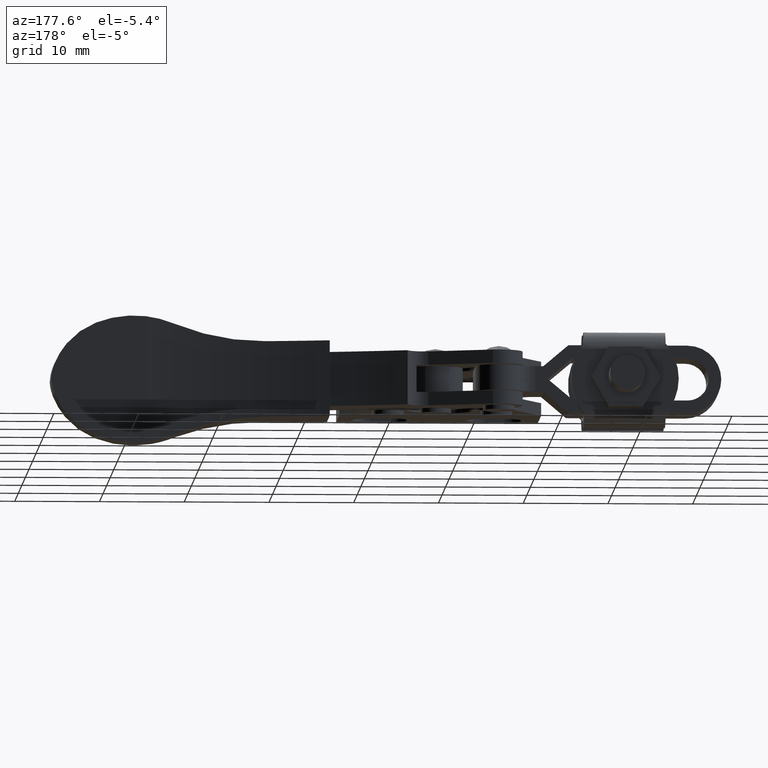
[diagram: clean part render]
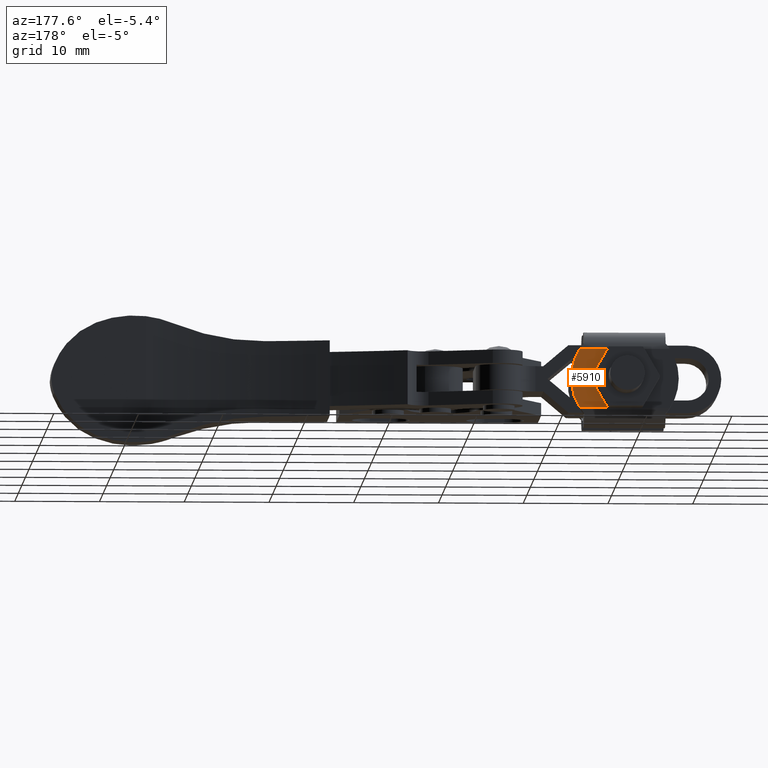
[diagram: same view with one face highlighted and labeled with its STEP entity id]
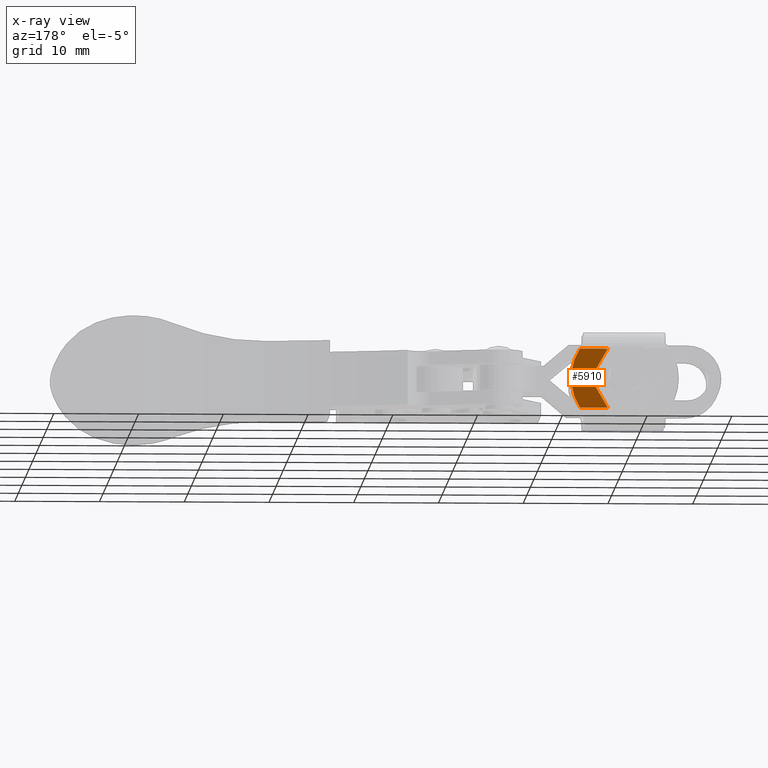
[diagram: x-ray of the same camera — body ghosted, the highlighted face saturated]
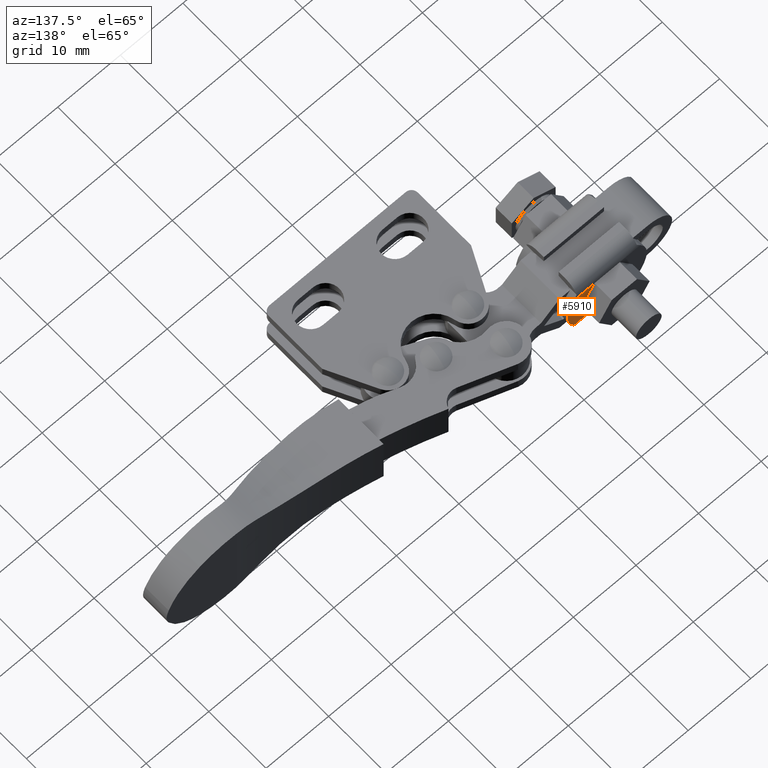
[diagram: same view with one face highlighted and labeled with its STEP entity id]
A machine part, auxiliary view. The second image highlights one B-rep face of the part: STEP entity #5910.
The next image is the same camera in x-ray: the body ghosted, the highlighted face saturated — about 0% of this face is hidden behind the body in this view.
A second angle (auxiliary view) of the same face is appended — the face is thin or edge-on in the first view.
In plain terms, the highlighted planar face has unit normal (0, 1, 0).
Its self-contained STEP definition (entity closure, byte-faithful):
#143 = VECTOR ( 'NONE', #828, 1000.000000000000000 ) ;
#188 = DIRECTION ( 'NONE',  ( -1.000000000000000000, 0.0000000000000000000, 8.316539286046452500E-017 ) ) ;
#207 = DIRECTION ( 'NONE',  ( 0.4999999999999997200, 2.383741803116716000E-016, -0.8660254037844388200 ) ) ;
#243 = AXIS2_PLACEMENT_3D ( 'NONE', #5484, #3967, #9354 ) ;
#828 = DIRECTION ( 'NONE',  ( -1.000000000000000000, 1.745565497701661800E-017, 8.316539286046234300E-017 ) ) ;
#906 = EDGE_CURVE ( 'NONE', #8196, #2449, #7276, .T. ) ;
#1757 = CARTESIAN_POINT ( 'NONE',  ( -4.027903785283811500, 23.87000000000291800, 3.499999999999174900 ) ) ;
#2068 = DIRECTION ( 'NONE',  ( 1.000000000000000000, -1.745565497701661800E-017, -8.316539286046234300E-017 ) ) ;
#2322 = ORIENTED_EDGE ( 'NONE', *, *, #9730, .F. ) ;
#2449 = VERTEX_POINT ( 'NONE', #9466 ) ;
#2650 = VERTEX_POINT ( 'NONE', #4413 ) ;
#2843 = EDGE_CURVE ( 'NONE', #2650, #8085, #4218, .T. ) ;
#2863 = CIRCLE ( 'NONE', #9708, 6.349999999999472100 ) ;
#2984 = VERTEX_POINT ( 'NONE', #1757 ) ;
#3187 = VECTOR ( 'NONE', #207, 1000.000000000000100 ) ;
#3967 = DIRECTION ( 'NONE',  ( 1.745565497701661800E-017, 1.000000000000000000, 1.456761602005746500E-016 ) ) ;
#4128 = CARTESIAN_POINT ( 'NONE',  ( -5.284800700346622200, 23.87000000000291800, -7.789155385434130400E-013 ) ) ;
#4218 = LINE ( 'NONE', #6210, #143 ) ;
#4358 = CARTESIAN_POINT ( 'NONE',  ( -9.326252584673998300, 23.87000000000291800, 3.499999999999187300 ) ) ;
#4413 = CARTESIAN_POINT ( 'NONE',  ( -4.027903785283811500, 23.87000000000291800, -3.500000000000743400 ) ) ;
#4798 = DIRECTION ( 'NONE',  ( 1.745565497701661800E-017, 1.000000000000000000, 1.456761602005746700E-016 ) ) ;
#4861 = VECTOR ( 'NONE', #2068, 1000.000000000000000 ) ;
#4945 = DIRECTION ( 'NONE',  ( -0.4999999999999998300, 1.394433060717225900E-017, -0.8660254037844387100 ) ) ;
#5484 = CARTESIAN_POINT ( 'NONE',  ( -2.900052584673995100, 23.87000000000291800, 3.499999999999186900 ) ) ;
#5564 = CARTESIAN_POINT ( 'NONE',  ( -7.305526642510306700, 23.87000000000291800, 3.499999999999215300 ) ) ;
#5665 = LINE ( 'NONE', #4128, #7216 ) ;
#5910 = ADVANCED_FACE ( 'NONE', ( #6613 ), #8560, .T. ) ;
#5935 = EDGE_CURVE ( 'NONE', #2984, #2650, #2863, .T. ) ;
#6132 = CARTESIAN_POINT ( 'NONE',  ( -7.305526642510310300, 23.87000000000291800, -3.500000000000754500 ) ) ;
#6170 = ORIENTED_EDGE ( 'NONE', *, *, #2843, .T. ) ;
#6210 = CARTESIAN_POINT ( 'NONE',  ( -9.326252584673998300, 23.87000000000291800, -3.500000000000754500 ) ) ;
#6613 = FACE_OUTER_BOUND ( 'NONE', #6927, .T. ) ;
#6927 = EDGE_LOOP ( 'NONE', ( #7025, #9558, #7733, #6170, #2322 ) ) ;
#7025 = ORIENTED_EDGE ( 'NONE', *, *, #906, .F. ) ;
#7122 = LINE ( 'NONE', #4358, #4861 ) ;
#7216 = VECTOR ( 'NONE', #4945, 1000.000000000000100 ) ;
#7276 = LINE ( 'NONE', #5564, #3187 ) ;
#7733 = ORIENTED_EDGE ( 'NONE', *, *, #5935, .T. ) ;
#8085 = VERTEX_POINT ( 'NONE', #6132 ) ;
#8196 = VERTEX_POINT ( 'NONE', #8551 ) ;
#8492 = EDGE_CURVE ( 'NONE', #8196, #2984, #7122, .T. ) ;
#8551 = CARTESIAN_POINT ( 'NONE',  ( -7.305526642510289800, 23.87000000000291800, 3.499999999999187300 ) ) ;
#8560 = PLANE ( 'NONE',  #243 ) ;
#9354 = DIRECTION ( 'NONE',  ( -8.316539286054062600E-017, 1.456761602005746500E-016, -1.000000000000000000 ) ) ;
#9386 = CARTESIAN_POINT ( 'NONE',  ( -9.326252584673444100, 23.87000000000291800, -7.828106575287138400E-013 ) ) ;
#9466 = CARTESIAN_POINT ( 'NONE',  ( -5.284800700346622200, 23.87000000000291800, -7.784785137687058100E-013 ) ) ;
#9558 = ORIENTED_EDGE ( 'NONE', *, *, #8492, .T. ) ;
#9708 = AXIS2_PLACEMENT_3D ( 'NONE', #9386, #4798, #188 ) ;
#9730 = EDGE_CURVE ( 'NONE', #2449, #8085, #5665, .T. ) ;